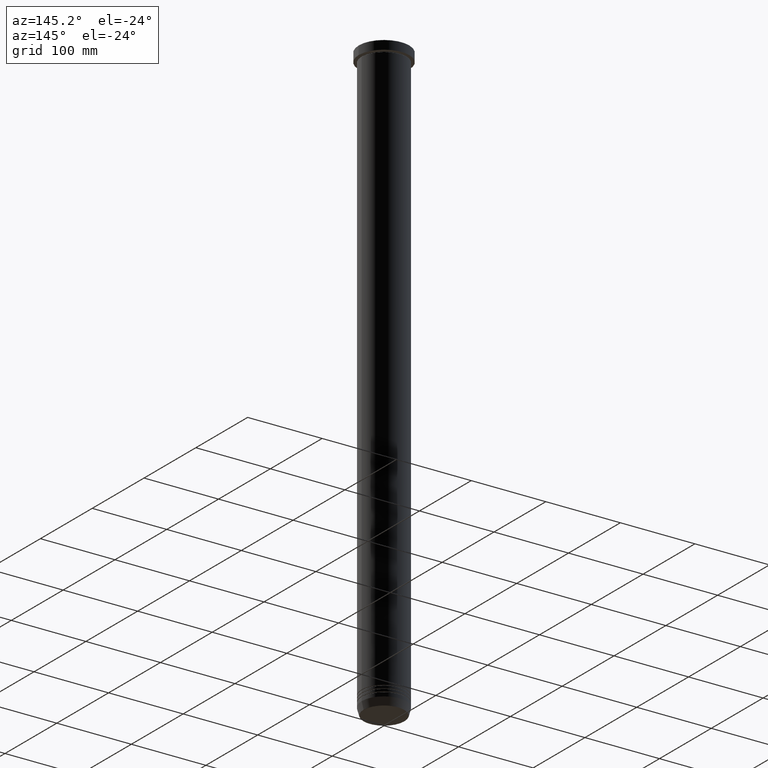
[diagram: clean part render]
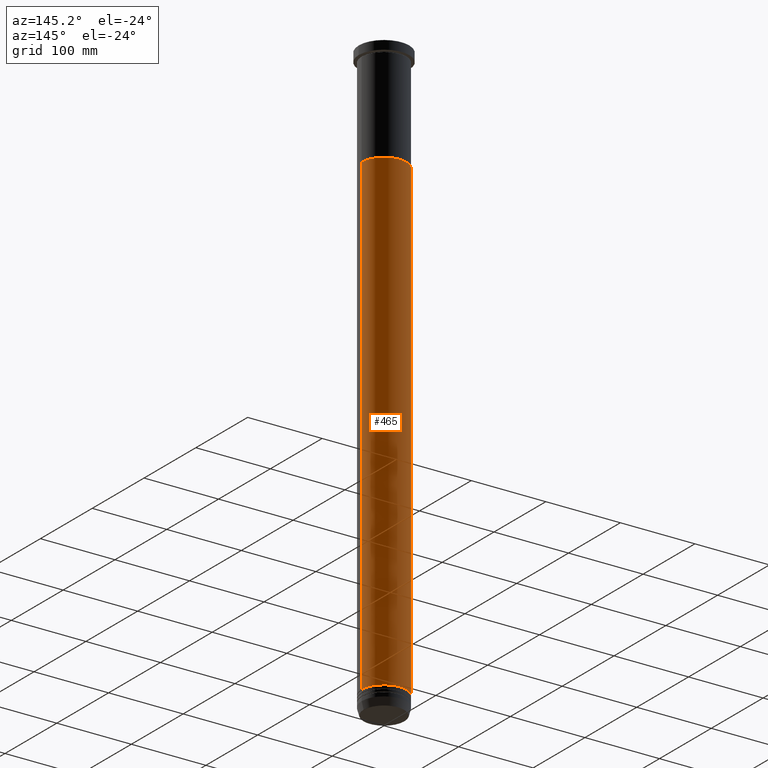
[diagram: same view with one face highlighted and labeled with its STEP entity id]
A machine part, auxiliary view. The second image highlights one B-rep face of the part: STEP entity #465.
In plain terms, the highlighted cylindrical surface (edge-blend (fillet) strip) has radius 30 mm, axis along (-0, -0, 1).
Its self-contained STEP definition (entity closure, byte-faithful):
#58 = VERTEX_POINT ( 'NONE', #592 ) ;
#94 = DIRECTION ( 'NONE',  ( -0.000000000000000000, -0.000000000000000000, 1.000000000000000000 ) ) ;
#98 = EDGE_CURVE ( 'NONE', #602, #1037, #586, .T. ) ;
#100 = CARTESIAN_POINT ( 'NONE',  ( -30.00000000000000355, 3.673940397442059967E-15, -140.0000000000000000 ) ) ;
#128 = CARTESIAN_POINT ( 'NONE',  ( -29.99999999999999645, 3.673940397442059178E-15, 0.000000000000000000 ) ) ;
#154 = AXIS2_PLACEMENT_3D ( 'NONE', #717, #711, #790 ) ;
#162 = ORIENTED_EDGE ( 'NONE', *, *, #98, .T. ) ;
#175 = CARTESIAN_POINT ( 'NONE',  ( 0.000000000000000000, 0.000000000000000000, -140.0000000000000000 ) ) ;
#176 = CIRCLE ( 'NONE', #528, 30.00000000000000000 ) ;
#208 = CIRCLE ( 'NONE', #154, 29.99999999999999289 ) ;
#249 = EDGE_CURVE ( 'NONE', #58, #602, #208, .T. ) ;
#255 = AXIS2_PLACEMENT_3D ( 'NONE', #742, #746, #575 ) ;
#265 = EDGE_CURVE ( 'NONE', #58, #591, #552, .T. ) ;
#400 = ORIENTED_EDGE ( 'NONE', *, *, #265, .F. ) ;
#430 = DIRECTION ( 'NONE',  ( -0.000000000000000000, -0.000000000000000000, 1.000000000000000000 ) ) ;
#465 = ADVANCED_FACE ( 'NONE', ( #559 ), #892, .T. ) ;
#519 = CARTESIAN_POINT ( 'NONE',  ( -29.99999999999999289, 3.673940397442059178E-15, -775.9999999999998863 ) ) ;
#528 = AXIS2_PLACEMENT_3D ( 'NONE', #175, #94, #983 ) ;
#547 = DIRECTION ( 'NONE',  ( -0.000000000000000000, -0.000000000000000000, 1.000000000000000000 ) ) ;
#552 = LINE ( 'NONE', #708, #1023 ) ;
#559 = FACE_OUTER_BOUND ( 'NONE', #629, .T. ) ;
#575 = DIRECTION ( 'NONE',  ( 1.000000000000000000, 0.000000000000000000, 0.000000000000000000 ) ) ;
#586 = LINE ( 'NONE', #128, #679 ) ;
#591 = VERTEX_POINT ( 'NONE', #929 ) ;
#592 = CARTESIAN_POINT ( 'NONE',  ( 29.99999999999999289, 0.000000000000000000, -775.9999999999998863 ) ) ;
#602 = VERTEX_POINT ( 'NONE', #519 ) ;
#629 = EDGE_LOOP ( 'NONE', ( #744, #162, #934, #400 ) ) ;
#679 = VECTOR ( 'NONE', #430, 1000.000000000000000 ) ;
#708 = CARTESIAN_POINT ( 'NONE',  ( 29.99999999999999645, 0.000000000000000000, 0.000000000000000000 ) ) ;
#711 = DIRECTION ( 'NONE',  ( -0.000000000000000000, -0.000000000000000000, 1.000000000000000000 ) ) ;
#717 = CARTESIAN_POINT ( 'NONE',  ( 0.000000000000000000, 0.000000000000000000, -775.9999999999998863 ) ) ;
#742 = CARTESIAN_POINT ( 'NONE',  ( 0.000000000000000000, 0.000000000000000000, 0.000000000000000000 ) ) ;
#744 = ORIENTED_EDGE ( 'NONE', *, *, #249, .T. ) ;
#746 = DIRECTION ( 'NONE',  ( -0.000000000000000000, -0.000000000000000000, 1.000000000000000000 ) ) ;
#790 = DIRECTION ( 'NONE',  ( 1.000000000000000000, 0.000000000000000000, 0.000000000000000000 ) ) ;
#892 = CYLINDRICAL_SURFACE ( 'NONE', #255, 29.99999999999999645 ) ;
#929 = CARTESIAN_POINT ( 'NONE',  ( 30.00000000000000000, 0.000000000000000000, -140.0000000000000000 ) ) ;
#934 = ORIENTED_EDGE ( 'NONE', *, *, #942, .F. ) ;
#942 = EDGE_CURVE ( 'NONE', #591, #1037, #176, .T. ) ;
#983 = DIRECTION ( 'NONE',  ( 1.000000000000000000, 0.000000000000000000, 0.000000000000000000 ) ) ;
#1023 = VECTOR ( 'NONE', #547, 1000.000000000000000 ) ;
#1037 = VERTEX_POINT ( 'NONE', #100 ) ;